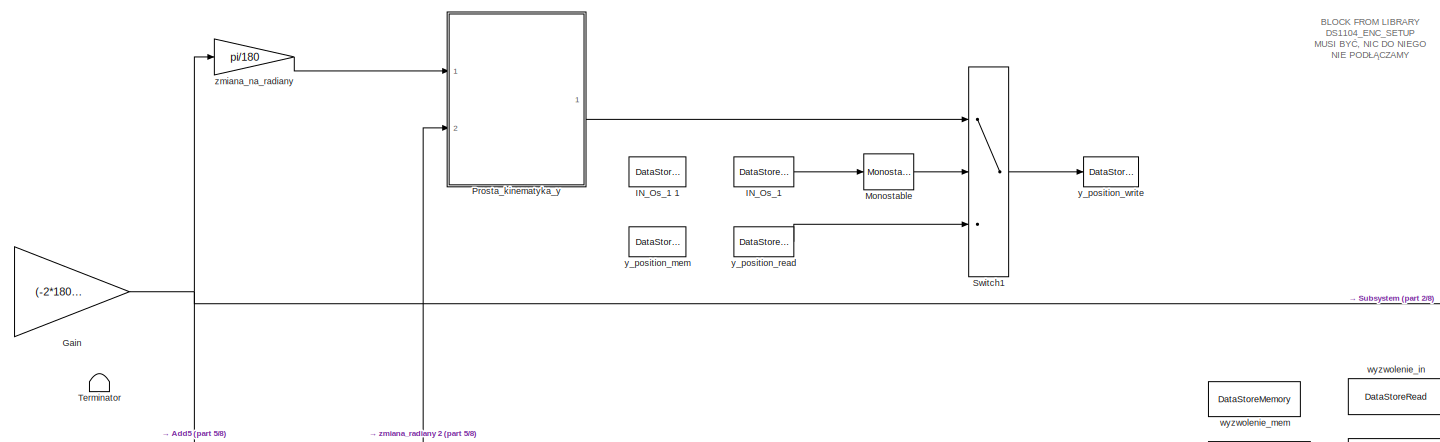
[diagram: root canvas - part 1/8, top center region]
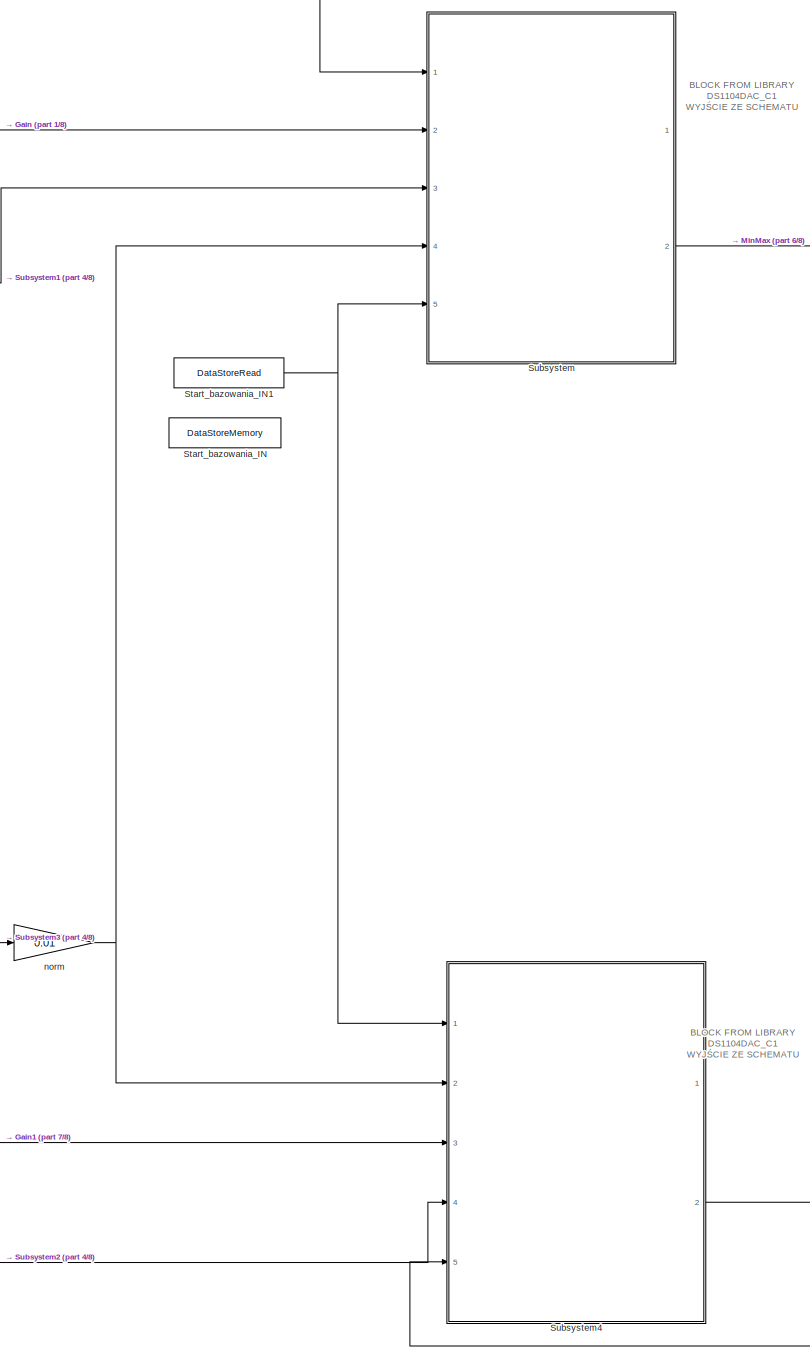
[diagram: root canvas - part 2/8, middle right region]
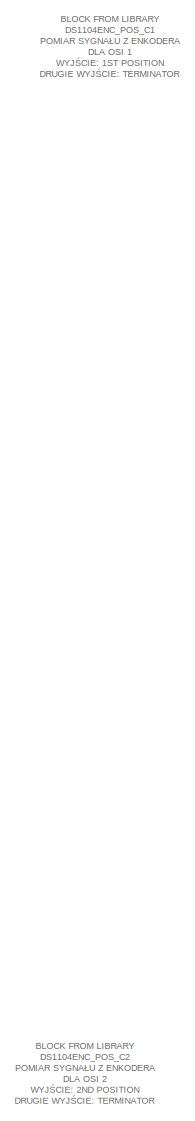
[diagram: root canvas - part 3/8, middle left region]
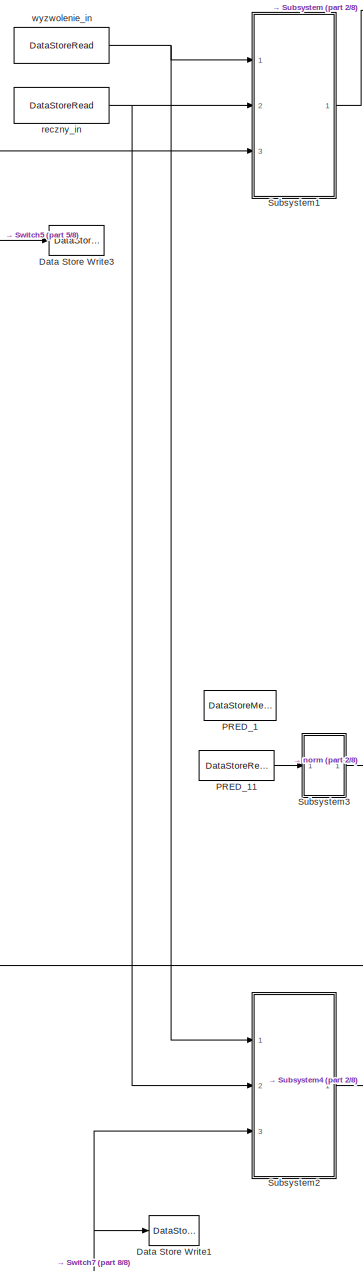
[diagram: root canvas - part 4/8, central region]
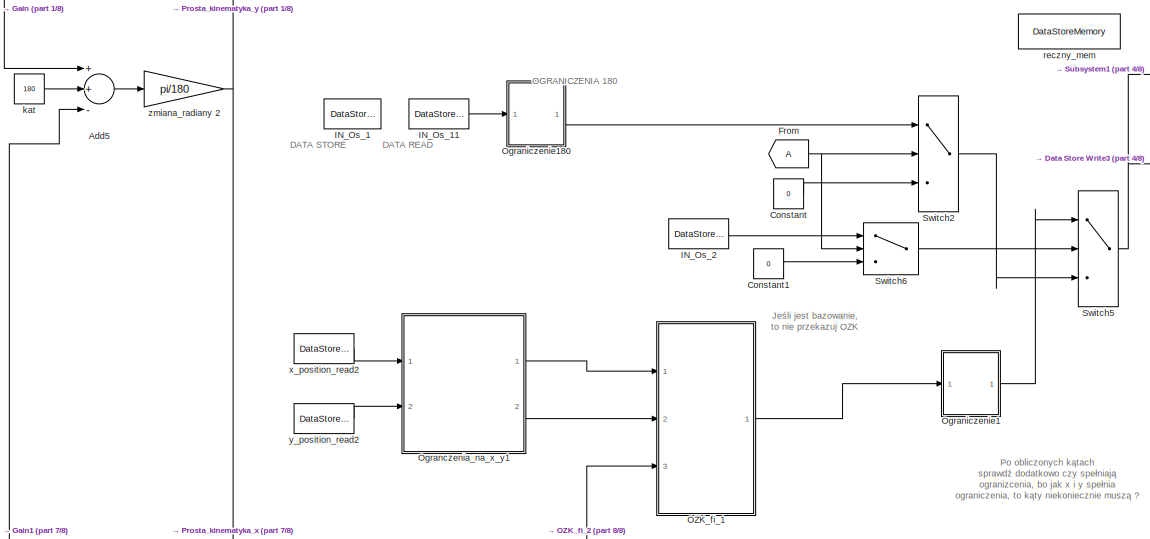
[diagram: root canvas - part 5/8, central region]
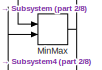
[diagram: root canvas - part 6/8, middle right region]
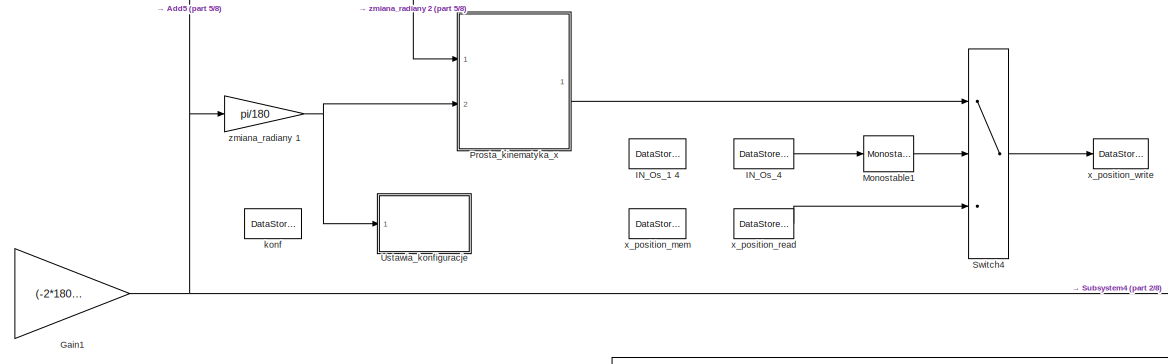
[diagram: root canvas - part 7/8, middle left region]
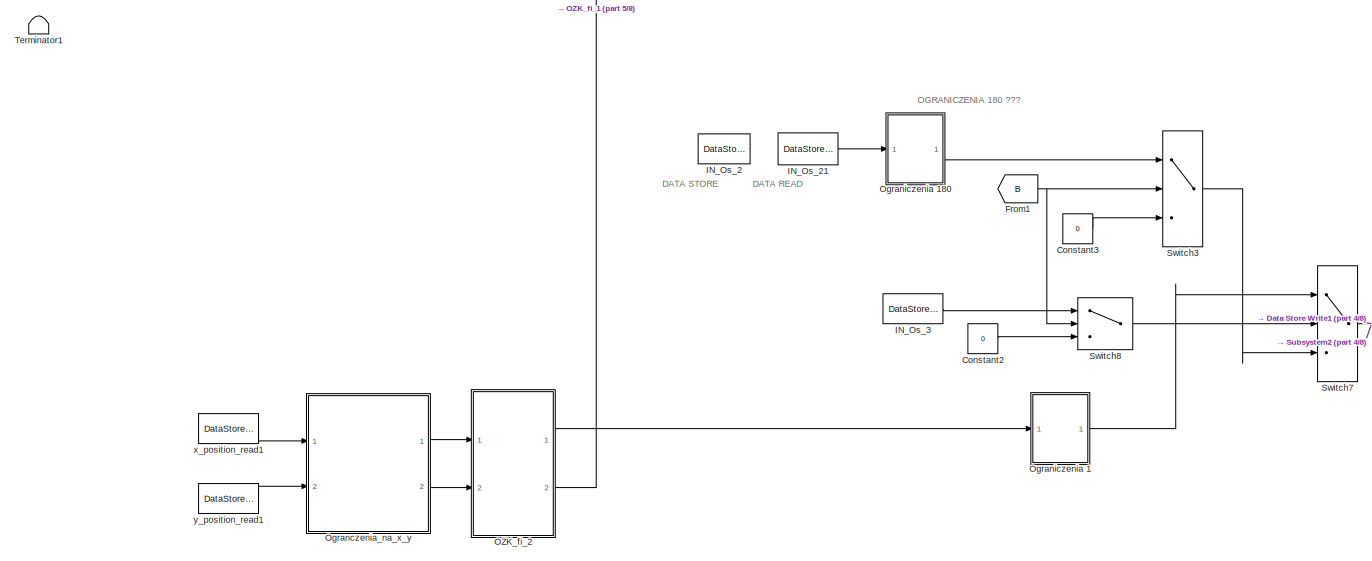
[diagram: root canvas - part 8/8, bottom center region]
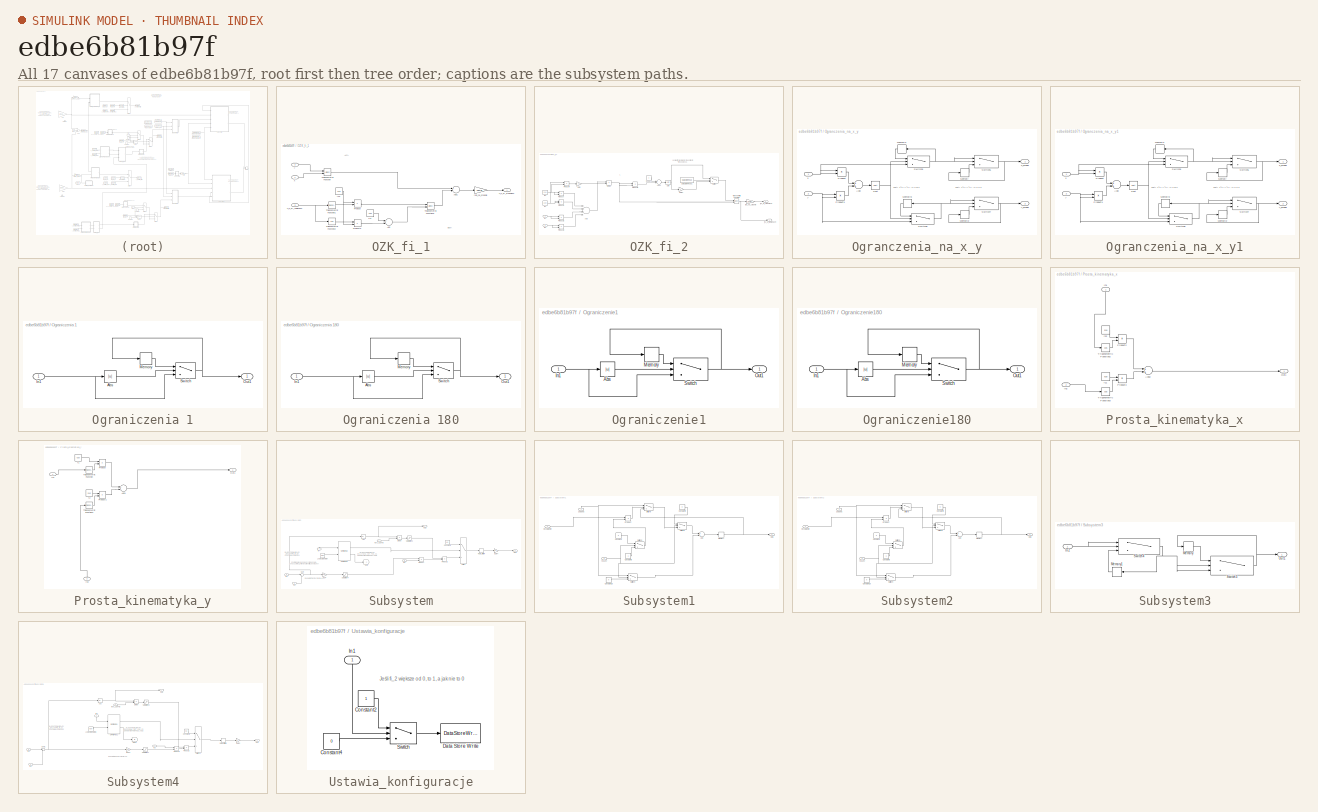
[diagram: thumbnail index - all 17 canvases of the model, root first then tree order]
MODEL slx_edbe6b81b97f
KIND model
CONFIG AbsTol = auto
CONFIG FixedStep = auto
CONFIG MaxStep = auto
CONFIG MinStep = auto
CONFIG RelTol = 1e-3
CONFIG SampleTimeConstraint = Unconstrained
CONFIG Solver = VariableStepAuto
CONFIG SolverMode = Auto
CONFIG SolverName = VariableStepAuto
CONFIG StartTime = 0.0
CONFIG StopTime = 10.0
BLOCK [Sum] Add5
  InputSameDT = off
  Inputs = ++-
  OutDataTypeStr = Inherit: Inherit via internal rule
  Ports = [3, 1]
  SaturateOnIntegerOverflow = off
BLOCK [Constant] Constant
  Value = 0
BLOCK [Constant] Constant1
  Value = 0
BLOCK [Constant] Constant2
  Value = 0
BLOCK [Constant] Constant3
  Value = 0
BLOCK [DataStoreWrite] Data Store Write1
  DataStoreName = IN_Os_2
  Ports = [1]
BLOCK [DataStoreWrite] Data Store Write3
  DataStoreName = IN_Os_1
  Ports = [1]
BLOCK [From] From
BLOCK [From] From1
  GotoTag = B
BLOCK [Gain] Gain
  Gain = (-2*180)/(500*128)
  OutDataTypeStr = Inherit: Inherit via internal rule
  ParamDataTypeStr = Inherit: Inherit via internal rule
  SaturateOnIntegerOverflow = off
BLOCK [Gain] Gain1
  Gain = (-2*180)/(500*128)
  OutDataTypeStr = Inherit: Inherit via internal rule
  ParamDataTypeStr = Inherit: Inherit via internal rule
  SaturateOnIntegerOverflow = off
BLOCK [DataStoreRead] IN_Os_1
  DataStoreName = OZK
  Ports = [0, 1]
BLOCK [DataStoreMemory] IN_Os_1 
  DataStoreName = IN_Os_1
  ReadBeforeWriteMsg = warning
  ShowAdditionalParam = off
  WriteAfterReadMsg = warning
  WriteAfterWriteMsg = warning
BLOCK [DataStoreMemory] IN_Os_1 1
  DataStoreName = OZK
  ReadBeforeWriteMsg = warning
  ShowAdditionalParam = off
  WriteAfterReadMsg = warning
  WriteAfterWriteMsg = warning
BLOCK [DataStoreMemory] IN_Os_1 4
  DataStoreName = OZK
  ReadBeforeWriteMsg = warning
  ShowAdditionalParam = off
  WriteAfterReadMsg = warning
  WriteAfterWriteMsg = warning
BLOCK [DataStoreRead] IN_Os_11
  DataStoreName = IN_Os_1
  Ports = [0, 1]
BLOCK [DataStoreRead] IN_Os_2
  DataStoreName = OZK
  Ports = [0, 1]
BLOCK [DataStoreMemory] IN_Os_2 
  DataStoreName = IN_Os_2
  ReadBeforeWriteMsg = warning
  ShowAdditionalParam = off
  WriteAfterReadMsg = warning
  WriteAfterWriteMsg = warning
BLOCK [DataStoreRead] IN_Os_21
  DataStoreName = IN_Os_2
  Ports = [0, 1]
BLOCK [DataStoreRead] IN_Os_3
  DataStoreName = OZK
  Ports = [0, 1]
BLOCK [DataStoreRead] IN_Os_4
  DataStoreName = OZK
  Ports = [0, 1]
BLOCK [MinMax] MinMax
  Function = max
  InputSameDT = off
  Inputs = 2
  Ports = [2, 1]
  SaturateOnIntegerOverflow = off
BLOCK [Reference] Monostable  REF=powerlib_meascontrol/Logic/Monostable
  Ports = [1, 1]
  SourceBlock = powerlib_meascontrol/Logic/Monostable
  SourceType = Monostable
BLOCK [Reference] Monostable1  REF=powerlib_meascontrol/Logic/Monostable
  Ports = [1, 1]
  SourceBlock = powerlib_meascontrol/Logic/Monostable
  SourceType = Monostable
BLOCK [SubSystem] OZK_fi_1
  Ports = [3, 1]
  RequestExecContextInheritance = off
  Variant = off
BLOCK [Sum] OZK_fi_1/Add
  InputSameDT = off
  Inputs = +-
  OutDataTypeStr = Inherit: Inherit via internal rule
  Ports = [2, 1]
  SaturateOnIntegerOverflow = off
BLOCK [Sum] OZK_fi_1/Add1
  InputSameDT = off
  Inputs = +-
  OutDataTypeStr = Inherit: Inherit via internal rule
  Ports = [2, 1]
  SaturateOnIntegerOverflow = off
BLOCK [Product] OZK_fi_1/Product
  InputSameDT = off
  OutDataTypeStr = Inherit: Inherit via internal rule
  Ports = [2, 1]
  RndMeth = Floor
  SaturateOnIntegerOverflow = off
BLOCK [Product] OZK_fi_1/Product5
  InputSameDT = off
  OutDataTypeStr = Inherit: Inherit via internal rule
  Ports = [2, 1]
  RndMeth = Floor
  SaturateOnIntegerOverflow = off
BLOCK [Trigonometry] OZK_fi_1/Trigonometric Function
  Operator = atan2
  Ports = [2, 1]
BLOCK [Trigonometry] OZK_fi_1/Trigonometric Function1
  Ports = [1, 1]
BLOCK [Trigonometry] OZK_fi_1/Trigonometric Function2
  Operator = cos
  Ports = [1, 1]
BLOCK [Trigonometry] OZK_fi_1/Trigonometric Function3
  Operator = atan2
  Ports = [2, 1]
BLOCK [Outport] OZK_fi_1/fi_1_w_stopniach
  IconDisplay = Port number
BLOCK [Inport] OZK_fi_1/fi_2_w_radianach
  IconDisplay = Port number
  Port = 3
BLOCK [Constant] OZK_fi_1/r11
  Value = 630
BLOCK [Constant] OZK_fi_1/r22
  Value = 510
BLOCK [Gain] OZK_fi_1/rad_na_stopnie
  Gain = 180/pi
  OutDataTypeStr = Inherit: Inherit via internal rule
  ParamDataTypeStr = Inherit: Inherit via internal rule
  SaturateOnIntegerOverflow = off
BLOCK [Inport] OZK_fi_1/x
  IconDisplay = Port number
BLOCK [Inport] OZK_fi_1/y
  IconDisplay = Port number
  Port = 2
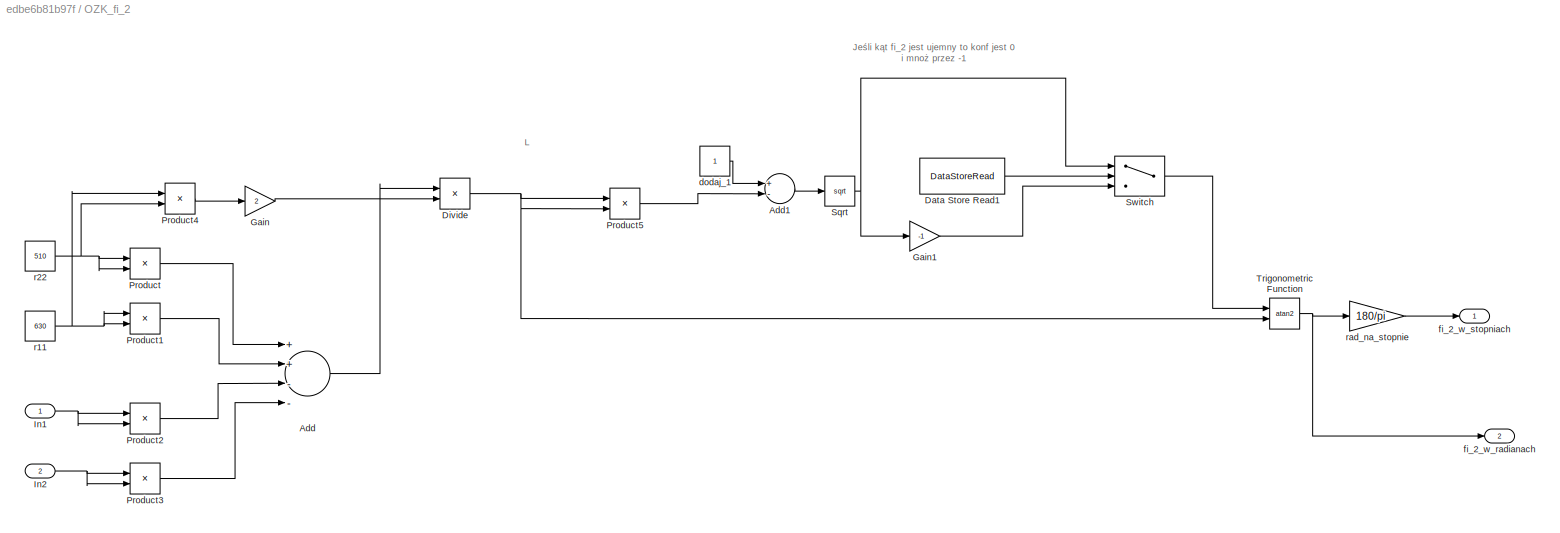
BLOCK [SubSystem] OZK_fi_2
  Ports = [2, 2]
  RequestExecContextInheritance = off
  Variant = off
BLOCK [Sum] OZK_fi_2/Add
  InputSameDT = off
  Inputs = ++--
  OutDataTypeStr = Inherit: Inherit via internal rule
  Ports = [4, 1]
  SaturateOnIntegerOverflow = off
BLOCK [Sum] OZK_fi_2/Add1
  InputSameDT = off
  Inputs = +-
  OutDataTypeStr = Inherit: Inherit via internal rule
  Ports = [2, 1]
  SaturateOnIntegerOverflow = off
BLOCK [DataStoreRead] OZK_fi_2/Data Store Read1
  DataStoreName = konf
  Ports = [0, 1]
BLOCK [Product] OZK_fi_2/Divide
  InputSameDT = off
  Inputs = */
  OutDataTypeStr = Inherit: Inherit via internal rule
  Ports = [2, 1]
  RndMeth = Floor
  SaturateOnIntegerOverflow = off
BLOCK [Gain] OZK_fi_2/Gain
  Gain = 2
  OutDataTypeStr = Inherit: Inherit via internal rule
  ParamDataTypeStr = Inherit: Inherit via internal rule
  SaturateOnIntegerOverflow = off
BLOCK [Gain] OZK_fi_2/Gain1
  Gain = -1
  OutDataTypeStr = Inherit: Inherit via internal rule
  ParamDataTypeStr = Inherit: Inherit via internal rule
  SaturateOnIntegerOverflow = off
BLOCK [Inport] OZK_fi_2/In1
  IconDisplay = Port number
BLOCK [Inport] OZK_fi_2/In2
  IconDisplay = Port number
  Port = 2
BLOCK [Product] OZK_fi_2/Product
  InputSameDT = off
  OutDataTypeStr = Inherit: Inherit via internal rule
  Ports = [2, 1]
  RndMeth = Floor
  SaturateOnIntegerOverflow = off
BLOCK [Product] OZK_fi_2/Product1
  InputSameDT = off
  OutDataTypeStr = Inherit: Inherit via internal rule
  Ports = [2, 1]
  RndMeth = Floor
  SaturateOnIntegerOverflow = off
BLOCK [Product] OZK_fi_2/Product2
  InputSameDT = off
  OutDataTypeStr = Inherit: Inherit via internal rule
  Ports = [2, 1]
  RndMeth = Floor
  SaturateOnIntegerOverflow = off
BLOCK [Product] OZK_fi_2/Product3
  InputSameDT = off
  OutDataTypeStr = Inherit: Inherit via internal rule
  Ports = [2, 1]
  RndMeth = Floor
  SaturateOnIntegerOverflow = off
BLOCK [Product] OZK_fi_2/Product4
  InputSameDT = off
  OutDataTypeStr = Inherit: Inherit via internal rule
  Ports = [2, 1]
  RndMeth = Floor
  SaturateOnIntegerOverflow = off
BLOCK [Product] OZK_fi_2/Product5
  InputSameDT = off
  OutDataTypeStr = Inherit: Inherit via internal rule
  Ports = [2, 1]
  RndMeth = Floor
  SaturateOnIntegerOverflow = off
BLOCK [Sqrt] OZK_fi_2/Sqrt
BLOCK [Switch] OZK_fi_2/Switch
  Criteria = u2 > Threshold
  InputSameDT = off
  SaturateOnIntegerOverflow = off
BLOCK [Trigonometry] OZK_fi_2/Trigonometric Function
  Operator = atan2
  Ports = [2, 1]
BLOCK [Constant] OZK_fi_2/dodaj_1
BLOCK [Outport] OZK_fi_2/fi_2_w_radianach
  IconDisplay = Port number
  Port = 2
BLOCK [Outport] OZK_fi_2/fi_2_w_stopniach
  IconDisplay = Port number
BLOCK [Constant] OZK_fi_2/r11
  Value = 630
BLOCK [Constant] OZK_fi_2/r22
  Value = 510
BLOCK [Gain] OZK_fi_2/rad_na_stopnie
  Gain = 180/pi
  OutDataTypeStr = Inherit: Inherit via internal rule
  ParamDataTypeStr = Inherit: Inherit via internal rule
  SaturateOnIntegerOverflow = off
BLOCK [SubSystem] Ogranczenia_na_x_y
  Ports = [2, 2]
  RequestExecContextInheritance = off
  Variant = off
BLOCK [Sum] Ogranczenia_na_x_y/Add
  InputSameDT = off
  OutDataTypeStr = Inherit: Inherit via internal rule
  Ports = [2, 1]
  SaturateOnIntegerOverflow = off
BLOCK [Memory] Ogranczenia_na_x_y/Memory
BLOCK [Memory] Ogranczenia_na_x_y/Memory1
BLOCK [Memory] Ogranczenia_na_x_y/Memory2
BLOCK [Memory] Ogranczenia_na_x_y/Memory3
BLOCK [Product] Ogranczenia_na_x_y/Product
  InputSameDT = off
  OutDataTypeStr = Inherit: Inherit via internal rule
  Ports = [2, 1]
  RndMeth = Floor
  SaturateOnIntegerOverflow = off
BLOCK [Product] Ogranczenia_na_x_y/Product1
  InputSameDT = off
  OutDataTypeStr = Inherit: Inherit via internal rule
  Ports = [2, 1]
  RndMeth = Floor
  SaturateOnIntegerOverflow = off
BLOCK [Sqrt] Ogranczenia_na_x_y/Sqrt
BLOCK [Switch] Ogranczenia_na_x_y/Switch5
  InputSameDT = off
  SaturateOnIntegerOverflow = off
  Threshold = 120
BLOCK [Switch] Ogranczenia_na_x_y/Switch6
  InputSameDT = off
  SaturateOnIntegerOverflow = off
  Threshold = 1140
BLOCK [Switch] Ogranczenia_na_x_y/Switch7
  InputSameDT = off
  SaturateOnIntegerOverflow = off
  Threshold = 120
BLOCK [Switch] Ogranczenia_na_x_y/Switch8
  InputSameDT = off
  SaturateOnIntegerOverflow = off
  Threshold = 1140
BLOCK [Inport] Ogranczenia_na_x_y/x
  IconDisplay = Port number
BLOCK [Outport] Ogranczenia_na_x_y/x_proper
  IconDisplay = Port number
BLOCK [Inport] Ogranczenia_na_x_y/y
  IconDisplay = Port number
  Port = 2
BLOCK [Outport] Ogranczenia_na_x_y/y_proper
  IconDisplay = Port number
  Port = 2
BLOCK [SubSystem] Ogranczenia_na_x_y1
  Ports = [2, 2]
  RequestExecContextInheritance = off
  Variant = off
BLOCK [Sum] Ogranczenia_na_x_y1/Add
  InputSameDT = off
  OutDataTypeStr = Inherit: Inherit via internal rule
  Ports = [2, 1]
  SaturateOnIntegerOverflow = off
BLOCK [Memory] Ogranczenia_na_x_y1/Memory
BLOCK [Memory] Ogranczenia_na_x_y1/Memory1
BLOCK [Memory] Ogranczenia_na_x_y1/Memory2
BLOCK [Memory] Ogranczenia_na_x_y1/Memory3
BLOCK [Product] Ogranczenia_na_x_y1/Product
  InputSameDT = off
  OutDataTypeStr = Inherit: Inherit via internal rule
  Ports = [2, 1]
  RndMeth = Floor
  SaturateOnIntegerOverflow = off
BLOCK [Product] Ogranczenia_na_x_y1/Product1
  InputSameDT = off
  OutDataTypeStr = Inherit: Inherit via internal rule
  Ports = [2, 1]
  RndMeth = Floor
  SaturateOnIntegerOverflow = off
BLOCK [Sqrt] Ogranczenia_na_x_y1/Sqrt
BLOCK [Switch] Ogranczenia_na_x_y1/Switch5
  InputSameDT = off
  SaturateOnIntegerOverflow = off
  Threshold = 120
BLOCK [Switch] Ogranczenia_na_x_y1/Switch6
  InputSameDT = off
  SaturateOnIntegerOverflow = off
  Threshold = 1140
BLOCK [Switch] Ogranczenia_na_x_y1/Switch7
  InputSameDT = off
  SaturateOnIntegerOverflow = off
  Threshold = 120
BLOCK [Switch] Ogranczenia_na_x_y1/Switch8
  InputSameDT = off
  SaturateOnIntegerOverflow = off
  Threshold = 1140
BLOCK [Inport] Ogranczenia_na_x_y1/x
  IconDisplay = Port number
BLOCK [Outport] Ogranczenia_na_x_y1/x_proper
  IconDisplay = Port number
BLOCK [Inport] Ogranczenia_na_x_y1/y
  IconDisplay = Port number
  Port = 2
BLOCK [Outport] Ogranczenia_na_x_y1/y_proper
  IconDisplay = Port number
  Port = 2
BLOCK [SubSystem] Ograniczenia 1
  Ports = [1, 1]
  RequestExecContextInheritance = off
  Variant = off
BLOCK [Abs] Ograniczenia 1/Abs
  SaturateOnIntegerOverflow = off
BLOCK [Inport] Ograniczenia 1/In1
  IconDisplay = Port number
BLOCK [Memory] Ograniczenia 1/Memory
BLOCK [Outport] Ograniczenia 1/Out1
  IconDisplay = Port number
BLOCK [Switch] Ograniczenia 1/Switch
  Criteria = u2 > Threshold
  InputSameDT = off
  SaturateOnIntegerOverflow = off
  Threshold = 40
BLOCK [SubSystem] Ograniczenia 180
  Ports = [1, 1]
  RequestExecContextInheritance = off
  Variant = off
BLOCK [Abs] Ograniczenia 180/Abs
  SaturateOnIntegerOverflow = off
BLOCK [Inport] Ograniczenia 180/In1
  IconDisplay = Port number
BLOCK [Memory] Ograniczenia 180/Memory
BLOCK [Outport] Ograniczenia 180/Out1
  IconDisplay = Port number
BLOCK [Switch] Ograniczenia 180/Switch
  Criteria = u2 > Threshold
  InputSameDT = off
  SaturateOnIntegerOverflow = off
  Threshold = 40
BLOCK [SubSystem] Ograniczenie1
  Ports = [1, 1]
  RequestExecContextInheritance = off
  Variant = off
BLOCK [Abs] Ograniczenie1/Abs
  SaturateOnIntegerOverflow = off
BLOCK [Inport] Ograniczenie1/In1
  IconDisplay = Port number
BLOCK [Memory] Ograniczenie1/Memory
BLOCK [Outport] Ograniczenie1/Out1
  IconDisplay = Port number
BLOCK [Switch] Ograniczenie1/Switch
  Criteria = u2 > Threshold
  InputSameDT = off
  SaturateOnIntegerOverflow = off
  Threshold = 180
BLOCK [SubSystem] Ograniczenie180
  Ports = [1, 1]
  RequestExecContextInheritance = off
  Variant = off
BLOCK [Abs] Ograniczenie180/Abs
  SaturateOnIntegerOverflow = off
BLOCK [Inport] Ograniczenie180/In1
  IconDisplay = Port number
BLOCK [Memory] Ograniczenie180/Memory
BLOCK [Outport] Ograniczenie180/Out1
  IconDisplay = Port number
BLOCK [Switch] Ograniczenie180/Switch
  Criteria = u2 > Threshold
  InputSameDT = off
  SaturateOnIntegerOverflow = off
  Threshold = 180
BLOCK [DataStoreMemory] PRED_1 
  DataStoreName = PRED_1
  InitialValue = 50
  ReadBeforeWriteMsg = warning
  ShowAdditionalParam = off
  WriteAfterReadMsg = warning
  WriteAfterWriteMsg = warning
BLOCK [DataStoreRead] PRED_11 
  DataStoreName = PRED_1
  Ports = [0, 1]
BLOCK [SubSystem] Prosta_kinematyka_x
  Ports = [2, 1]
  RequestExecContextInheritance = off
  Variant = off
BLOCK [Sum] Prosta_kinematyka_x/Add2
  InputSameDT = off
  OutDataTypeStr = Inherit: Inherit via internal rule
  Ports = [2, 1]
  SaturateOnIntegerOverflow = off
BLOCK [Inport] Prosta_kinematyka_x/In1
  IconDisplay = Port number
BLOCK [Inport] Prosta_kinematyka_x/In2
  IconDisplay = Port number
  Port = 2
BLOCK [Outport] Prosta_kinematyka_x/Out1
  IconDisplay = Port number
BLOCK [Product] Prosta_kinematyka_x/Product2
  InputSameDT = off
  OutDataTypeStr = Inherit: Inherit via internal rule
  Ports = [2, 1]
  RndMeth = Floor
  SaturateOnIntegerOverflow = off
BLOCK [Product] Prosta_kinematyka_x/Product3
  InputSameDT = off
  OutDataTypeStr = Inherit: Inherit via internal rule
  Ports = [2, 1]
  RndMeth = Floor
  SaturateOnIntegerOverflow = off
BLOCK [Trigonometry] Prosta_kinematyka_x/Trigonometric Function2
  Operator = cos
  Ports = [1, 1]
BLOCK [Trigonometry] Prosta_kinematyka_x/Trigonometric Function3
  Operator = cos
  Ports = [1, 1]
BLOCK [Constant] Prosta_kinematyka_x/r11
  Value = 630
BLOCK [Constant] Prosta_kinematyka_x/r22
  Value = 510
BLOCK [SubSystem] Prosta_kinematyka_y
  Ports = [2, 1]
  RequestExecContextInheritance = off
  Variant = off
BLOCK [Sum] Prosta_kinematyka_y/Add1
  InputSameDT = off
  OutDataTypeStr = Inherit: Inherit via internal rule
  Ports = [2, 1]
  SaturateOnIntegerOverflow = off
BLOCK [Inport] Prosta_kinematyka_y/In1
  IconDisplay = Port number
BLOCK [Inport] Prosta_kinematyka_y/In2
  IconDisplay = Port number
  Port = 2
BLOCK [Outport] Prosta_kinematyka_y/Out1
  IconDisplay = Port number
BLOCK [Product] Prosta_kinematyka_y/Product
  InputSameDT = off
  OutDataTypeStr = Inherit: Inherit via internal rule
  Ports = [2, 1]
  RndMeth = Floor
  SaturateOnIntegerOverflow = off
BLOCK [Product] Prosta_kinematyka_y/Product1
  InputSameDT = off
  OutDataTypeStr = Inherit: Inherit via internal rule
  Ports = [2, 1]
  RndMeth = Floor
  SaturateOnIntegerOverflow = off
BLOCK [Trigonometry] Prosta_kinematyka_y/Trigonometric Function
  Ports = [1, 1]
BLOCK [Trigonometry] Prosta_kinematyka_y/Trigonometric Function1
  Ports = [1, 1]
BLOCK [Constant] Prosta_kinematyka_y/r1
  Value = 630
BLOCK [Constant] Prosta_kinematyka_y/r2
  Value = 510
BLOCK [DataStoreMemory] Start_bazowania_IN 
  DataStoreName = Start_bazowania_IN
  ReadBeforeWriteMsg = warning
  ShowAdditionalParam = off
  WriteAfterReadMsg = warning
  WriteAfterWriteMsg = warning
BLOCK [DataStoreRead] Start_bazowania_IN1
  DataStoreName = Start_bazowania_IN
  Ports = [0, 1]
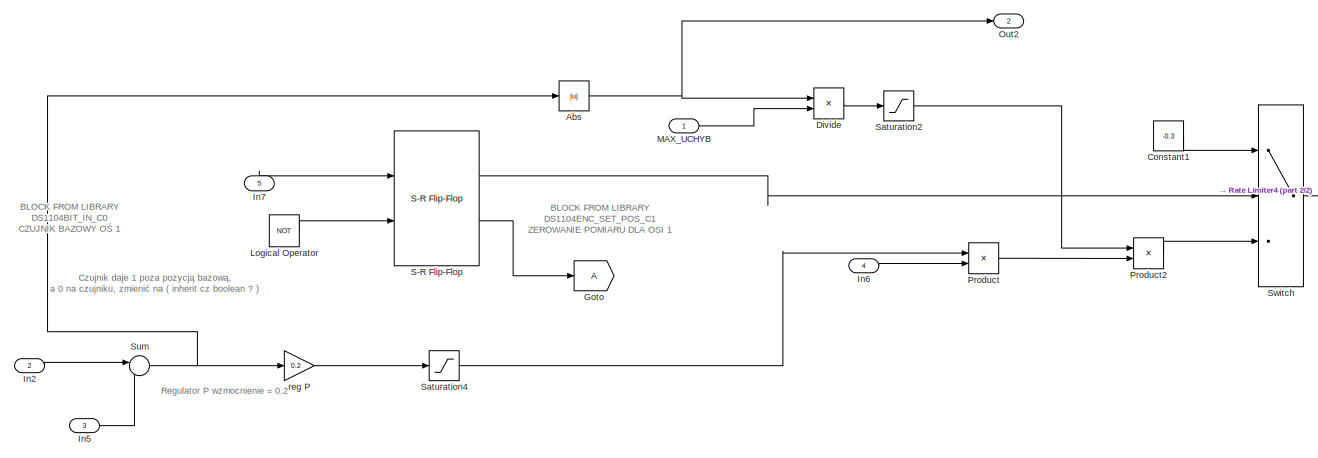
[diagram: Subsystem - part 1/2, most of the canvas]
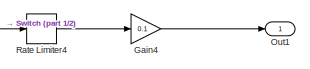
[diagram: Subsystem - part 2/2, middle right region]
BLOCK [SubSystem] Subsystem
  Ports = [5, 2]
  RequestExecContextInheritance = off
  Variant = off
BLOCK [Abs] Subsystem/Abs
  SaturateOnIntegerOverflow = off
BLOCK [Constant] Subsystem/Constant1
  Value = -0.3
BLOCK [Product] Subsystem/Divide
  InputSameDT = off
  Inputs = */
  OutDataTypeStr = Inherit: Inherit via internal rule
  Ports = [2, 1]
  RndMeth = Floor
  SaturateOnIntegerOverflow = off
BLOCK [Gain] Subsystem/Gain4
  Gain = 0.1
  OutDataTypeStr = Inherit: Inherit via internal rule
  ParamDataTypeStr = Inherit: Inherit via internal rule
  SaturateOnIntegerOverflow = off
BLOCK [Goto] Subsystem/Goto
BLOCK [Inport] Subsystem/In2
  IconDisplay = Port number
  Port = 2
BLOCK [Inport] Subsystem/In5
  IconDisplay = Port number
  Port = 3
BLOCK [Inport] Subsystem/In6
  IconDisplay = Port number
  Port = 4
BLOCK [Inport] Subsystem/In7
  IconDisplay = Port number
  Port = 5
BLOCK [Logic] Subsystem/Logical Operator
  AllPortsSameDT = off
  Operator = NOT
  Ports = [1, 1]
BLOCK [Inport] Subsystem/MAX_UCHYB 
  IconDisplay = Port number
BLOCK [Outport] Subsystem/Out1
  IconDisplay = Port number
BLOCK [Outport] Subsystem/Out2
  IconDisplay = Port number
  Port = 2
BLOCK [Product] Subsystem/Product
  InputSameDT = off
  OutDataTypeStr = Inherit: Inherit via internal rule
  Ports = [2, 1]
  RndMeth = Floor
  SaturateOnIntegerOverflow = off
BLOCK [Product] Subsystem/Product2
  InputSameDT = off
  OutDataTypeStr = Inherit: Inherit via internal rule
  Ports = [2, 1]
  RndMeth = Floor
  SaturateOnIntegerOverflow = off
BLOCK [RateLimiter] Subsystem/Rate Limiter4
  FallingSlewLimit = -50
  RisingSlewLimit = 50
  SampleTimeMode = inherited
BLOCK [Reference] Subsystem/S-R Flip-Flop  REF=simulink_extras/Flip Flops/S-R
Flip-Flop
  Ports = [2, 2]
  SourceBlock = simulink_extras/Flip Flops/S-R\nFlip-Flop
  SourceType = SRFlipFlop
BLOCK [Saturate] Subsystem/Saturation2
  InputPortMap = u0
  LowerLimit = 0.001
  Ports = [1, 1]
  UpperLimit = 1
BLOCK [Saturate] Subsystem/Saturation4
  InputPortMap = u0
  LowerLimit = -3
  Ports = [1, 1]
  UpperLimit = 3
BLOCK [Sum] Subsystem/Sum
  IconShape = round
  InputSameDT = off
  Inputs = |-+
  OutDataTypeStr = Inherit: Inherit via internal rule
  Ports = [2, 1]
  SaturateOnIntegerOverflow = off
BLOCK [Switch] Subsystem/Switch
  Criteria = u2 > Threshold
  InputSameDT = off
  SaturateOnIntegerOverflow = off
BLOCK [Gain] Subsystem/reg P
  Gain = 0.2
  OutDataTypeStr = Inherit: Inherit via internal rule
  ParamDataTypeStr = Inherit: Inherit via internal rule
  SaturateOnIntegerOverflow = off
BLOCK [SubSystem] Subsystem1
  Ports = [3, 1]
  RequestExecContextInheritance = off
  Variant = off
BLOCK [Sum] Subsystem1/Add
  InputSameDT = off
  OutDataTypeStr = Inherit: Inherit via internal rule
  Ports = [2, 1]
  SaturateOnIntegerOverflow = off
BLOCK [Constant] Subsystem1/Constant10
  Value = 0
BLOCK [Constant] Subsystem1/Constant7
  Value = 0
BLOCK [Constant] Subsystem1/Constant8
BLOCK [Constant] Subsystem1/Constant9
  Value = 0
BLOCK [Memory] Subsystem1/Memory
BLOCK [Outport] Subsystem1/Out1
  IconDisplay = Port number
BLOCK [Product] Subsystem1/Product
  InputSameDT = off
  OutDataTypeStr = Inherit: Inherit via internal rule
  Ports = [2, 1]
  RndMeth = Floor
  SaturateOnIntegerOverflow = off
BLOCK [Switch] Subsystem1/Switch3
  Criteria = u2 > Threshold
  InputSameDT = off
  SaturateOnIntegerOverflow = off
BLOCK [Switch] Subsystem1/Switch4
  Criteria = u2 > Threshold
  InputSameDT = off
  SaturateOnIntegerOverflow = off
BLOCK [Switch] Subsystem1/Switch5
  Criteria = u2 > Threshold
  InputSameDT = off
  SaturateOnIntegerOverflow = off
BLOCK [Switch] Subsystem1/Switch6
  Criteria = u2 > Threshold
  InputSameDT = off
  SaturateOnIntegerOverflow = off
BLOCK [Inport] Subsystem1/reczny 
  IconDisplay = Port number
  Port = 2
BLOCK [Inport] Subsystem1/wyzwolenie
  IconDisplay = Port number
BLOCK [Inport] Subsystem1/zadana 
  IconDisplay = Port number
  Port = 3
BLOCK [SubSystem] Subsystem2
  Ports = [3, 1]
  RequestExecContextInheritance = off
  Variant = off
BLOCK [Sum] Subsystem2/Add
  InputSameDT = off
  OutDataTypeStr = Inherit: Inherit via internal rule
  Ports = [2, 1]
  SaturateOnIntegerOverflow = off
BLOCK [Constant] Subsystem2/Constant10
  Value = 0
BLOCK [Constant] Subsystem2/Constant7
  Value = 0
BLOCK [Constant] Subsystem2/Constant8
BLOCK [Constant] Subsystem2/Constant9
  Value = 0
BLOCK [Memory] Subsystem2/Memory
BLOCK [Outport] Subsystem2/Out1
  IconDisplay = Port number
BLOCK [Product] Subsystem2/Product
  InputSameDT = off
  OutDataTypeStr = Inherit: Inherit via internal rule
  Ports = [2, 1]
  RndMeth = Floor
  SaturateOnIntegerOverflow = off
BLOCK [Switch] Subsystem2/Switch3
  Criteria = u2 > Threshold
  InputSameDT = off
  SaturateOnIntegerOverflow = off
BLOCK [Switch] Subsystem2/Switch4
  Criteria = u2 > Threshold
  InputSameDT = off
  SaturateOnIntegerOverflow = off
BLOCK [Switch] Subsystem2/Switch5
  Criteria = u2 > Threshold
  InputSameDT = off
  SaturateOnIntegerOverflow = off
BLOCK [Switch] Subsystem2/Switch6
  Criteria = u2 > Threshold
  InputSameDT = off
  SaturateOnIntegerOverflow = off
BLOCK [Inport] Subsystem2/reczny 
  IconDisplay = Port number
  Port = 2
BLOCK [Inport] Subsystem2/wyzwolenie
  IconDisplay = Port number
BLOCK [Inport] Subsystem2/zadana 
  IconDisplay = Port number
  Port = 3
BLOCK [SubSystem] Subsystem3
  Ports = [1, 1]
  RequestExecContextInheritance = off
  Variant = off
BLOCK [Inport] Subsystem3/In2
  IconDisplay = Port number
BLOCK [Memory] Subsystem3/Memory
BLOCK [Memory] Subsystem3/Memory1
BLOCK [Outport] Subsystem3/Out1
  IconDisplay = Port number
BLOCK [Switch] Subsystem3/Switch3
  InputSameDT = off
  SaturateOnIntegerOverflow = off
  Threshold = 100
BLOCK [Switch] Subsystem3/Switch4
  Criteria = u2 > Threshold
  InputSameDT = off
  SaturateOnIntegerOverflow = off
  Threshold = 1
BLOCK [SubSystem] Subsystem4
  Ports = [5, 2]
  RequestExecContextInheritance = off
  Variant = off
BLOCK [Abs] Subsystem4/Abs
  SaturateOnIntegerOverflow = off
BLOCK [Constant] Subsystem4/Constant2
  Value = -0.3
BLOCK [Product] Subsystem4/Divide
  InputSameDT = off
  Inputs = */
  OutDataTypeStr = Inherit: Inherit via internal rule
  Ports = [2, 1]
  RndMeth = Floor
  SaturateOnIntegerOverflow = off
BLOCK [Gain] Subsystem4/Gain2
  Gain = 0.1
  OutDataTypeStr = Inherit: Inherit via internal rule
  ParamDataTypeStr = Inherit: Inherit via internal rule
  SaturateOnIntegerOverflow = off
BLOCK [Goto] Subsystem4/Goto1
  GotoTag = B
BLOCK [Inport] Subsystem4/In1
  IconDisplay = Port number
BLOCK [Inport] Subsystem4/In2
  IconDisplay = Port number
  Port = 2
BLOCK [Inport] Subsystem4/In3
  IconDisplay = Port number
  Port = 3
BLOCK [Inport] Subsystem4/In5
  IconDisplay = Port number
  Port = 4
BLOCK [Logic] Subsystem4/Logical Operator1
  AllPortsSameDT = off
  Operator = NOT
  Ports = [1, 1]
BLOCK [Inport] Subsystem4/MAX_UCHYB 
  IconDisplay = Port number
  Port = 5
BLOCK [Outport] Subsystem4/Out1
  IconDisplay = Port number
  Port = 2
BLOCK [Outport] Subsystem4/Out2
  IconDisplay = Port number
BLOCK [Product] Subsystem4/Product1
  InputSameDT = off
  OutDataTypeStr = Inherit: Inherit via internal rule
  Ports = [2, 1]
  RndMeth = Floor
  SaturateOnIntegerOverflow = off
BLOCK [Product] Subsystem4/Product2
  InputSameDT = off
  OutDataTypeStr = Inherit: Inherit via internal rule
  Ports = [2, 1]
  RndMeth = Floor
  SaturateOnIntegerOverflow = off
BLOCK [RateLimiter] Subsystem4/Rate Limiter1
  FallingSlewLimit = -50
  RisingSlewLimit = 50
  SampleTimeMode = inherited
BLOCK [Reference] Subsystem4/S-R Flip-Flop1  REF=simulink_extras/Flip Flops/S-R
Flip-Flop
  Ports = [2, 2]
  SourceBlock = simulink_extras/Flip Flops/S-R\nFlip-Flop
  SourceType = SRFlipFlop
BLOCK [Saturate] Subsystem4/Saturation1
  InputPortMap = u0
  LowerLimit = -3
  Ports = [1, 1]
  UpperLimit = 3
BLOCK [Saturate] Subsystem4/Saturation2
  InputPortMap = u0
  LowerLimit = 0.001
  Ports = [1, 1]
  UpperLimit = 1
BLOCK [Sum] Subsystem4/Sum1
  IconShape = round
  InputSameDT = off
  Inputs = |-+
  OutDataTypeStr = Inherit: Inherit via internal rule
  Ports = [2, 1]
  SaturateOnIntegerOverflow = off
BLOCK [Switch] Subsystem4/Switch1
  Criteria = u2 > Threshold
  InputSameDT = off
  SaturateOnIntegerOverflow = off
BLOCK [Gain] Subsystem4/reg P1
  Gain = 0.2
  OutDataTypeStr = Inherit: Inherit via internal rule
  ParamDataTypeStr = Inherit: Inherit via internal rule
  SaturateOnIntegerOverflow = off
BLOCK [Switch] Switch1
  Criteria = u2 > Threshold
  InputSameDT = off
  SaturateOnIntegerOverflow = off
BLOCK [Switch] Switch2
  Criteria = u2 > Threshold
  InputSameDT = off
  SaturateOnIntegerOverflow = off
BLOCK [Switch] Switch3
  Criteria = u2 > Threshold
  InputSameDT = off
  SaturateOnIntegerOverflow = off
BLOCK [Switch] Switch4
  Criteria = u2 > Threshold
  InputSameDT = off
  SaturateOnIntegerOverflow = off
BLOCK [Switch] Switch5
  Criteria = u2 > Threshold
  InputSameDT = off
  SaturateOnIntegerOverflow = off
BLOCK [Switch] Switch6
  Criteria = u2 > Threshold
  InputSameDT = off
  SaturateOnIntegerOverflow = off
BLOCK [Switch] Switch7
  Criteria = u2 > Threshold
  InputSameDT = off
  SaturateOnIntegerOverflow = off
BLOCK [Switch] Switch8
  Criteria = u2 > Threshold
  InputSameDT = off
  SaturateOnIntegerOverflow = off
BLOCK [Terminator] Terminator
BLOCK [Terminator] Terminator1
BLOCK [SubSystem] Ustawia_konfiguracje
  Ports = [1]
  RequestExecContextInheritance = off
  Variant = off
BLOCK [Constant] Ustawia_konfiguracje/Constant2
BLOCK [Constant] Ustawia_konfiguracje/Constant4
  Value = 0
BLOCK [DataStoreWrite] Ustawia_konfiguracje/Data Store Write
  DataStoreName = konf
  Ports = [1]
BLOCK [Inport] Ustawia_konfiguracje/In1
  IconDisplay = Port number
BLOCK [Switch] Ustawia_konfiguracje/Switch
  Criteria = u2 > Threshold
  InputSameDT = off
  SaturateOnIntegerOverflow = off
BLOCK [Constant] kat 
  Value = 180
BLOCK [DataStoreMemory] konf
  DataStoreName = konf
  ReadBeforeWriteMsg = warning
  ShowAdditionalParam = off
  WriteAfterReadMsg = warning
  WriteAfterWriteMsg = warning
BLOCK [Gain] norm
  Gain = 0.01
  OutDataTypeStr = Inherit: Inherit via internal rule
  ParamDataTypeStr = Inherit: Inherit via internal rule
  SaturateOnIntegerOverflow = off
BLOCK [DataStoreRead] reczny_in 
  DataStoreName = reczny
  Ports = [0, 1]
BLOCK [DataStoreMemory] reczny_mem
  DataStoreName = reczny
  ReadBeforeWriteMsg = warning
  ShowAdditionalParam = off
  WriteAfterReadMsg = warning
  WriteAfterWriteMsg = warning
BLOCK [DataStoreRead] wyzwolenie_in 
  DataStoreName = wyzwolenie
  Ports = [0, 1]
BLOCK [DataStoreMemory] wyzwolenie_mem
  DataStoreName = wyzwolenie
  ReadBeforeWriteMsg = warning
  ShowAdditionalParam = off
  WriteAfterReadMsg = warning
  WriteAfterWriteMsg = warning
BLOCK [DataStoreMemory] x_position_mem
  DataStoreName = x_position
  ReadBeforeWriteMsg = warning
  ShowAdditionalParam = off
  WriteAfterReadMsg = warning
  WriteAfterWriteMsg = warning
BLOCK [DataStoreRead] x_position_read
  DataStoreName = x_position
  Ports = [0, 1]
BLOCK [DataStoreRead] x_position_read1
  DataStoreName = x_position
  Ports = [0, 1]
BLOCK [DataStoreRead] x_position_read2
  DataStoreName = x_position
  Ports = [0, 1]
BLOCK [DataStoreWrite] x_position_write
  DataStoreName = x_position
  Ports = [1]
BLOCK [DataStoreMemory] y_position_mem 
  DataStoreName = y_position
  ReadBeforeWriteMsg = warning
  ShowAdditionalParam = off
  WriteAfterReadMsg = warning
  WriteAfterWriteMsg = warning
BLOCK [DataStoreRead] y_position_read
  DataStoreName = y_position
  Ports = [0, 1]
BLOCK [DataStoreRead] y_position_read1
  DataStoreName = y_position
  Ports = [0, 1]
BLOCK [DataStoreRead] y_position_read2
  DataStoreName = y_position
  Ports = [0, 1]
BLOCK [DataStoreWrite] y_position_write
  DataStoreName = y_position
  Ports = [1]
BLOCK [Gain] zmiana_na_radiany 
  Gain = pi/180
  OutDataTypeStr = Inherit: Inherit via internal rule
  ParamDataTypeStr = Inherit: Inherit via internal rule
  SaturateOnIntegerOverflow = off
BLOCK [Gain] zmiana_radiany 1
  Gain = pi/180
  OutDataTypeStr = Inherit: Inherit via internal rule
  ParamDataTypeStr = Inherit: Inherit via internal rule
  SaturateOnIntegerOverflow = off
BLOCK [Gain] zmiana_radiany 2
  Gain = pi/180
  OutDataTypeStr = Inherit: Inherit via internal rule
  ParamDataTypeStr = Inherit: Inherit via internal rule
  SaturateOnIntegerOverflow = off
ANNOTATION (root): DATA READ
ANNOTATION (root): BLOCK FROM LIBRARY DS1104DAC_C1 WYJŚCIE ZE SCHEMATU
ANNOTATION (root): DATA STORE
ANNOTATION (root): BLOCK FROM LIBRARY DS1104ENC_POS_C1 POMIAR SYGNAŁU Z ENKODERA DLA OSI 1 WYJŚCIE: 1ST POSITION DRUGIE WYJŚCIE: TERMINATOR
ANNOTATION (root): BLOCK FROM LIBRARY DS1104ENC_POS_C2 POMIAR SYGNAŁU Z ENKODERA DLA OSI 2 WYJŚCIE: 2 ND POSITION DRUGIE WYJŚCIE: TERMINATOR
ANNOTATION (root): BLOCK FROM LIBRARY DS1104_ENC_SETUP MUSI BYĆ, NIC DO NIEGO NIE PODŁĄCZAMY
ANNOTATION (root): OGRANICZENIA 180
ANNOTATION (root): OGRANICZENIA 180 ???
ANNOTATION (root): Jeśli jest bazowanie, to nie przekazuj OZK
ANNOTATION (root): Po obliczonych kątach sprawdź dodatkowo czy spełniają ogranizcenia, bo jak x i y spełnia ograniczenia, to kąty niekoniecznie muszą ?
ANNOTATION OZK_fi_1: ALFA
ANNOTATION OZK_fi_1: BETA
ANNOTATION OZK_fi_2: Jeśli kąt fi_2 jest ujemny to konf jest 0 i mnoż przez -1
ANNOTATION OZK_fi_2: L
ANNOTATION Ogranczenia_na_x_y: sqrt( x^2 + y^2 ) <= r1+r2
ANNOTATION Ogranczenia_na_x_y: sqrt( x^2 + y^2 ) => r1-r2
ANNOTATION Ogranczenia_na_x_y1: sqrt( x^2 + y^2 ) <= r1+r2
ANNOTATION Ogranczenia_na_x_y1: sqrt( x^2 + y^2 ) => r1-r2
ANNOTATION Subsystem: Regulator P wzmocnienie = 0.2
ANNOTATION Subsystem: BLOCK FROM LIBRARY DS1104BIT_IN_C0 CZUJNIK BAZOWY OŚ 1
ANNOTATION Subsystem: BLOCK FROM LIBRARY DS1104ENC_SET_POS_C1 ZEROWANIE POMIARU DLA OSI 1
ANNOTATION Subsystem: Czujnik daje 1 poza pozycją bazową, a 0 na czujniku, zmienić na ( inherit cz boolean ? )
ANNOTATION Subsystem4: Regulator P wzmocnienie = 0.2
ANNOTATION Subsystem4: BLOCK FROM LIBRARY DS1104BIT_IN_C1 CZUJNIK BAZOWY OŚ 2
ANNOTATION Subsystem4: BLOCK FROM LIBRARY DS1104ENC_SET_POS_C2 ZEROWANIE POMIARU DLA OSI 2
ANNOTATION Ustawia_konfiguracje: Jeśli fi_2 większe od 0, to 1, a jak nie to 0
LINE Add5:1 -> zmiana_radiany 2:1
LINE Constant1:1 -> Switch6:3
LINE Constant2:1 -> Switch8:3
LINE Constant3:1 -> Switch3:3
LINE Constant:1 -> Switch2:3
NET From1:1 -> Switch3:2, Switch8:2
NET From:1 -> Switch2:2, Switch6:2
NET Gain1:1 -> Add5:3, Subsystem4:3, zmiana_radiany 1:1
NET Gain:1 -> Add5:1, Subsystem:2, zmiana_na_radiany :1
LINE IN_Os_11:1 -> Ograniczenie180:1
LINE IN_Os_1:1 -> Monostable:1
LINE IN_Os_21:1 -> Ograniczenia 180:1
LINE IN_Os_2:1 -> Switch6:1
LINE IN_Os_3:1 -> Switch8:1
LINE IN_Os_4:1 -> Monostable1:1
NET MinMax:1 -> Subsystem4:5, Subsystem:1
LINE Monostable1:1 -> Switch4:2
LINE Monostable:1 -> Switch1:2
LINE OZK_fi_1/Add1:1 -> OZK_fi_1/rad_na_stopnie:1
LINE OZK_fi_1/Add:1 -> OZK_fi_1/Trigonometric Function3:2
LINE OZK_fi_1/Product5:1 -> OZK_fi_1/Add:2
LINE OZK_fi_1/Product:1 -> OZK_fi_1/Trigonometric Function3:1
LINE OZK_fi_1/Trigonometric Function1:1 -> OZK_fi_1/Product:2
LINE OZK_fi_1/Trigonometric Function2:1 -> OZK_fi_1/Product5:1
LINE OZK_fi_1/Trigonometric Function3:1 -> OZK_fi_1/Add1:2
LINE OZK_fi_1/Trigonometric Function:1 -> OZK_fi_1/Add1:1
NET OZK_fi_1/fi_2_w_radianach:1 -> OZK_fi_1/Trigonometric Function1:1, OZK_fi_1/Trigonometric Function2:1
LINE OZK_fi_1/r11:1 -> OZK_fi_1/Add:1
NET OZK_fi_1/r22:1 -> OZK_fi_1/Product5:2, OZK_fi_1/Product:1
LINE OZK_fi_1/rad_na_stopnie:1 -> OZK_fi_1/fi_1_w_stopniach:1
LINE OZK_fi_1/x:1 -> OZK_fi_1/Trigonometric Function:2
LINE OZK_fi_1/y:1 -> OZK_fi_1/Trigonometric Function:1
LINE OZK_fi_1:1 -> Ograniczenie1:1
LINE OZK_fi_2/Add1:1 -> OZK_fi_2/Sqrt:1
LINE OZK_fi_2/Add:1 -> OZK_fi_2/Divide:1
LINE OZK_fi_2/Data Store Read1:1 -> OZK_fi_2/Switch:2
NET OZK_fi_2/Divide:1 -> OZK_fi_2/Product5:1, OZK_fi_2/Product5:2, OZK_fi_2/Trigonometric Function:2
LINE OZK_fi_2/Gain1:1 -> OZK_fi_2/Switch:3
LINE OZK_fi_2/Gain:1 -> OZK_fi_2/Divide:2
NET OZK_fi_2/In1:1 -> OZK_fi_2/Product2:1, OZK_fi_2/Product2:2
NET OZK_fi_2/In2:1 -> OZK_fi_2/Product3:1, OZK_fi_2/Product3:2
LINE OZK_fi_2/Product1:1 -> OZK_fi_2/Add:2
LINE OZK_fi_2/Product2:1 -> OZK_fi_2/Add:3
LINE OZK_fi_2/Product3:1 -> OZK_fi_2/Add:4
LINE OZK_fi_2/Product4:1 -> OZK_fi_2/Gain:1
LINE OZK_fi_2/Product5:1 -> OZK_fi_2/Add1:2
LINE OZK_fi_2/Product:1 -> OZK_fi_2/Add:1
NET OZK_fi_2/Sqrt:1 -> OZK_fi_2/Gain1:1, OZK_fi_2/Switch:1
LINE OZK_fi_2/Switch:1 -> OZK_fi_2/Trigonometric Function:1
NET OZK_fi_2/Trigonometric Function:1 -> OZK_fi_2/fi_2_w_radianach:1, OZK_fi_2/rad_na_stopnie:1
LINE OZK_fi_2/dodaj_1:1 -> OZK_fi_2/Add1:1
NET OZK_fi_2/r11:1 -> OZK_fi_2/Product1:1, OZK_fi_2/Product1:2, OZK_fi_2/Product4:1
NET OZK_fi_2/r22:1 -> OZK_fi_2/Product4:2, OZK_fi_2/Product:1, OZK_fi_2/Product:2
LINE OZK_fi_2/rad_na_stopnie:1 -> OZK_fi_2/fi_2_w_stopniach:1
LINE OZK_fi_2:1 -> Ograniczenia 1:1
LINE OZK_fi_2:2 -> OZK_fi_1:3
LINE Ogranczenia_na_x_y/Add:1 -> Ogranczenia_na_x_y/Sqrt:1
LINE Ogranczenia_na_x_y/Memory1:1 -> Ogranczenia_na_x_y/Switch6:1
LINE Ogranczenia_na_x_y/Memory2:1 -> Ogranczenia_na_x_y/Switch7:3
LINE Ogranczenia_na_x_y/Memory3:1 -> Ogranczenia_na_x_y/Switch8:1
LINE Ogranczenia_na_x_y/Memory:1 -> Ogranczenia_na_x_y/Switch5:3
LINE Ogranczenia_na_x_y/Product1:1 -> Ogranczenia_na_x_y/Add:2
LINE Ogranczenia_na_x_y/Product:1 -> Ogranczenia_na_x_y/Add:1
NET Ogranczenia_na_x_y/Sqrt:1 -> Ogranczenia_na_x_y/Switch6:2, Ogranczenia_na_x_y/Switch8:2
NET Ogranczenia_na_x_y/Switch5:1 -> Ogranczenia_na_x_y/Memory:1, Ogranczenia_na_x_y/x_proper:1
NET Ogranczenia_na_x_y/Switch6:1 -> Ogranczenia_na_x_y/Memory1:1, Ogranczenia_na_x_y/Switch5:1, Ogranczenia_na_x_y/Switch5:2
NET Ogranczenia_na_x_y/Switch7:1 -> Ogranczenia_na_x_y/Memory2:1, Ogranczenia_na_x_y/y_proper:1
NET Ogranczenia_na_x_y/Switch8:1 -> Ogranczenia_na_x_y/Memory3:1, Ogranczenia_na_x_y/Switch7:1, Ogranczenia_na_x_y/Switch7:2
NET Ogranczenia_na_x_y/x:1 -> Ogranczenia_na_x_y/Product:1, Ogranczenia_na_x_y/Product:2, Ogranczenia_na_x_y/Switch6:3
NET Ogranczenia_na_x_y/y:1 -> Ogranczenia_na_x_y/Product1:1, Ogranczenia_na_x_y/Product1:2, Ogranczenia_na_x_y/Switch8:3
LINE Ogranczenia_na_x_y1/Add:1 -> Ogranczenia_na_x_y1/Sqrt:1
LINE Ogranczenia_na_x_y1/Memory1:1 -> Ogranczenia_na_x_y1/Switch6:1
LINE Ogranczenia_na_x_y1/Memory2:1 -> Ogranczenia_na_x_y1/Switch7:3
LINE Ogranczenia_na_x_y1/Memory3:1 -> Ogranczenia_na_x_y1/Switch8:1
LINE Ogranczenia_na_x_y1/Memory:1 -> Ogranczenia_na_x_y1/Switch5:3
LINE Ogranczenia_na_x_y1/Product1:1 -> Ogranczenia_na_x_y1/Add:2
LINE Ogranczenia_na_x_y1/Product:1 -> Ogranczenia_na_x_y1/Add:1
NET Ogranczenia_na_x_y1/Sqrt:1 -> Ogranczenia_na_x_y1/Switch6:2, Ogranczenia_na_x_y1/Switch8:2
NET Ogranczenia_na_x_y1/Switch5:1 -> Ogranczenia_na_x_y1/Memory:1, Ogranczenia_na_x_y1/x_proper:1
NET Ogranczenia_na_x_y1/Switch6:1 -> Ogranczenia_na_x_y1/Memory1:1, Ogranczenia_na_x_y1/Switch5:1, Ogranczenia_na_x_y1/Switch5:2
NET Ogranczenia_na_x_y1/Switch7:1 -> Ogranczenia_na_x_y1/Memory2:1, Ogranczenia_na_x_y1/y_proper:1
NET Ogranczenia_na_x_y1/Switch8:1 -> Ogranczenia_na_x_y1/Memory3:1, Ogranczenia_na_x_y1/Switch7:1, Ogranczenia_na_x_y1/Switch7:2
NET Ogranczenia_na_x_y1/x:1 -> Ogranczenia_na_x_y1/Product:1, Ogranczenia_na_x_y1/Product:2, Ogranczenia_na_x_y1/Switch6:3
NET Ogranczenia_na_x_y1/y:1 -> Ogranczenia_na_x_y1/Product1:1, Ogranczenia_na_x_y1/Product1:2, Ogranczenia_na_x_y1/Switch8:3
LINE Ogranczenia_na_x_y1:1 -> OZK_fi_1:1
LINE Ogranczenia_na_x_y1:2 -> OZK_fi_1:2
LINE Ogranczenia_na_x_y:1 -> OZK_fi_2:1
LINE Ogranczenia_na_x_y:2 -> OZK_fi_2:2
LINE Ograniczenia 1/Abs:1 -> Ograniczenia 1/Switch:2
NET Ograniczenia 1/In1:1 -> Ograniczenia 1/Abs:1, Ograniczenia 1/Switch:3
LINE Ograniczenia 1/Memory:1 -> Ograniczenia 1/Switch:1
NET Ograniczenia 1/Switch:1 -> Ograniczenia 1/Memory:1, Ograniczenia 1/Out1:1
LINE Ograniczenia 180/Abs:1 -> Ograniczenia 180/Switch:2
NET Ograniczenia 180/In1:1 -> Ograniczenia 180/Abs:1, Ograniczenia 180/Switch:3
LINE Ograniczenia 180/Memory:1 -> Ograniczenia 180/Switch:1
NET Ograniczenia 180/Switch:1 -> Ograniczenia 180/Memory:1, Ograniczenia 180/Out1:1
LINE Ograniczenia 180:1 -> Switch3:1
LINE Ograniczenia 1:1 -> Switch7:1
LINE Ograniczenie1/Abs:1 -> Ograniczenie1/Switch:2
NET Ograniczenie1/In1:1 -> Ograniczenie1/Abs:1, Ograniczenie1/Switch:3
LINE Ograniczenie1/Memory:1 -> Ograniczenie1/Switch:1
NET Ograniczenie1/Switch:1 -> Ograniczenie1/Memory:1, Ograniczenie1/Out1:1
LINE Ograniczenie180/Abs:1 -> Ograniczenie180/Switch:2
NET Ograniczenie180/In1:1 -> Ograniczenie180/Abs:1, Ograniczenie180/Switch:3
LINE Ograniczenie180/Memory:1 -> Ograniczenie180/Switch:1
NET Ograniczenie180/Switch:1 -> Ograniczenie180/Memory:1, Ograniczenie180/Out1:1
LINE Ograniczenie180:1 -> Switch2:1
LINE Ograniczenie1:1 -> Switch5:1
LINE PRED_11 :1 -> Subsystem3:1
LINE Prosta_kinematyka_x/Add2:1 -> Prosta_kinematyka_x/Out1:1
LINE Prosta_kinematyka_x/In1:1 -> Prosta_kinematyka_x/Trigonometric Function2:1
LINE Prosta_kinematyka_x/In2:1 -> Prosta_kinematyka_x/Trigonometric Function3:1
LINE Prosta_kinematyka_x/Product2:1 -> Prosta_kinematyka_x/Add2:1
LINE Prosta_kinematyka_x/Product3:1 -> Prosta_kinematyka_x/Add2:2
LINE Prosta_kinematyka_x/Trigonometric Function2:1 -> Prosta_kinematyka_x/Product2:2
LINE Prosta_kinematyka_x/Trigonometric Function3:1 -> Prosta_kinematyka_x/Product3:2
LINE Prosta_kinematyka_x/r11:1 -> Prosta_kinematyka_x/Product3:1
LINE Prosta_kinematyka_x/r22:1 -> Prosta_kinematyka_x/Product2:1
LINE Prosta_kinematyka_x:1 -> Switch4:1
LINE Prosta_kinematyka_y/Add1:1 -> Prosta_kinematyka_y/Out1:1
LINE Prosta_kinematyka_y/In1:1 -> Prosta_kinematyka_y/Trigonometric Function:1
LINE Prosta_kinematyka_y/In2:1 -> Prosta_kinematyka_y/Trigonometric Function1:1
LINE Prosta_kinematyka_y/Product1:1 -> Prosta_kinematyka_y/Add1:2
LINE Prosta_kinematyka_y/Product:1 -> Prosta_kinematyka_y/Add1:1
LINE Prosta_kinematyka_y/Trigonometric Function1:1 -> Prosta_kinematyka_y/Product1:2
LINE Prosta_kinematyka_y/Trigonometric Function:1 -> Prosta_kinematyka_y/Product:2
LINE Prosta_kinematyka_y/r1:1 -> Prosta_kinematyka_y/Product:1
LINE Prosta_kinematyka_y/r2:1 -> Prosta_kinematyka_y/Product1:1
LINE Prosta_kinematyka_y:1 -> Switch1:1
NET Start_bazowania_IN1:1 -> Subsystem4:1, Subsystem:5
NET Subsystem/Abs:1 -> Subsystem/Divide:1, Subsystem/Out2:1
LINE Subsystem/Constant1:1 -> Subsystem/Switch:1
LINE Subsystem/Divide:1 -> Subsystem/Saturation2:1
LINE Subsystem/Gain4:1 -> Subsystem/Out1:1
LINE Subsystem/In2:1 -> Subsystem/Sum:1
LINE Subsystem/In5:1 -> Subsystem/Sum:2
LINE Subsystem/In6:1 -> Subsystem/Product:2
LINE Subsystem/In7:1 -> Subsystem/S-R Flip-Flop:1
LINE Subsystem/Logical Operator:1 -> Subsystem/S-R Flip-Flop:2
LINE Subsystem/MAX_UCHYB :1 -> Subsystem/Divide:2
LINE Subsystem/Product2:1 -> Subsystem/Switch:3
LINE Subsystem/Product:1 -> Subsystem/Product2:2
LINE Subsystem/Rate Limiter4:1 -> Subsystem/Gain4:1
LINE Subsystem/S-R Flip-Flop:1 -> Subsystem/Switch:2
LINE Subsystem/S-R Flip-Flop:2 -> Subsystem/Goto:1
LINE Subsystem/Saturation2:1 -> Subsystem/Product2:1
LINE Subsystem/Saturation4:1 -> Subsystem/Product:1
NET Subsystem/Sum:1 -> Subsystem/Abs:1, Subsystem/reg P:1
LINE Subsystem/Switch:1 -> Subsystem/Rate Limiter4:1
LINE Subsystem/reg P:1 -> Subsystem/Saturation4:1
LINE Subsystem1/Add:1 -> Subsystem1/Memory:1
LINE Subsystem1/Constant10:1 -> Subsystem1/Switch4:3
LINE Subsystem1/Constant7:1 -> Subsystem1/Switch3:1
LINE Subsystem1/Constant8:1 -> Subsystem1/Switch3:3
LINE Subsystem1/Constant9:1 -> Subsystem1/Switch6:1
NET Subsystem1/Memory:1 -> Subsystem1/Out1:1, Subsystem1/Switch5:3
LINE Subsystem1/Product:1 -> Subsystem1/Switch5:2
LINE Subsystem1/Switch3:1 -> Subsystem1/Product:2
LINE Subsystem1/Switch4:1 -> Subsystem1/Add:2
LINE Subsystem1/Switch5:1 -> Subsystem1/Switch6:3
LINE Subsystem1/Switch6:1 -> Subsystem1/Add:1
NET Subsystem1/reczny :1 -> Subsystem1/Switch3:2, Subsystem1/Switch4:2, Subsystem1/Switch6:2
LINE Subsystem1/wyzwolenie:1 -> Subsystem1/Product:1
NET Subsystem1/zadana :1 -> Subsystem1/Switch4:1, Subsystem1/Switch5:1
LINE Subsystem1:1 -> Subsystem:3
LINE Subsystem2/Add:1 -> Subsystem2/Memory:1
LINE Subsystem2/Constant10:1 -> Subsystem2/Switch4:3
LINE Subsystem2/Constant7:1 -> Subsystem2/Switch3:1
LINE Subsystem2/Constant8:1 -> Subsystem2/Switch3:3
LINE Subsystem2/Constant9:1 -> Subsystem2/Switch6:1
NET Subsystem2/Memory:1 -> Subsystem2/Out1:1, Subsystem2/Switch5:3
LINE Subsystem2/Product:1 -> Subsystem2/Switch5:2
LINE Subsystem2/Switch3:1 -> Subsystem2/Product:2
LINE Subsystem2/Switch4:1 -> Subsystem2/Add:2
LINE Subsystem2/Switch5:1 -> Subsystem2/Switch6:3
LINE Subsystem2/Switch6:1 -> Subsystem2/Add:1
NET Subsystem2/reczny :1 -> Subsystem2/Switch3:2, Subsystem2/Switch4:2, Subsystem2/Switch6:2
LINE Subsystem2/wyzwolenie:1 -> Subsystem2/Product:1
NET Subsystem2/zadana :1 -> Subsystem2/Switch4:1, Subsystem2/Switch5:1
LINE Subsystem2:1 -> Subsystem4:4
NET Subsystem3/In2:1 -> Subsystem3/Switch4:1, Subsystem3/Switch4:2
LINE Subsystem3/Memory1:1 -> Subsystem3/Switch4:3
LINE Subsystem3/Memory:1 -> Subsystem3/Switch3:1
NET Subsystem3/Switch3:1 -> Subsystem3/Memory:1, Subsystem3/Out1:1
NET Subsystem3/Switch4:1 -> Subsystem3/Memory1:1, Subsystem3/Switch3:2, Subsystem3/Switch3:3
LINE Subsystem3:1 -> norm:1
NET Subsystem4/Abs:1 -> Subsystem4/Divide:1, Subsystem4/Out1:1
LINE Subsystem4/Constant2:1 -> Subsystem4/Switch1:1
LINE Subsystem4/Divide:1 -> Subsystem4/Saturation2:1
LINE Subsystem4/Gain2:1 -> Subsystem4/Out2:1
LINE Subsystem4/In1:1 -> Subsystem4/S-R Flip-Flop1:1
LINE Subsystem4/In2:1 -> Subsystem4/Product1:1
LINE Subsystem4/In3:1 -> Subsystem4/Sum1:1
LINE Subsystem4/In5:1 -> Subsystem4/Sum1:2
LINE Subsystem4/Logical Operator1:1 -> Subsystem4/S-R Flip-Flop1:2
LINE Subsystem4/MAX_UCHYB :1 -> Subsystem4/Divide:2
LINE Subsystem4/Product1:1 -> Subsystem4/Product2:2
LINE Subsystem4/Product2:1 -> Subsystem4/Switch1:3
LINE Subsystem4/Rate Limiter1:1 -> Subsystem4/Gain2:1
LINE Subsystem4/S-R Flip-Flop1:1 -> Subsystem4/Switch1:2
LINE Subsystem4/S-R Flip-Flop1:2 -> Subsystem4/Goto1:1
LINE Subsystem4/Saturation1:1 -> Subsystem4/Product1:2
LINE Subsystem4/Saturation2:1 -> Subsystem4/Product2:1
NET Subsystem4/Sum1:1 -> Subsystem4/Abs:1, Subsystem4/reg P1:1
LINE Subsystem4/Switch1:1 -> Subsystem4/Rate Limiter1:1
LINE Subsystem4/reg P1:1 -> Subsystem4/Saturation1:1
LINE Subsystem4:2 -> MinMax:2
LINE Subsystem:2 -> MinMax:1
LINE Switch1:1 -> y_position_write:1
LINE Switch2:1 -> Switch5:3
LINE Switch3:1 -> Switch7:3
LINE Switch4:1 -> x_position_write:1
NET Switch5:1 -> Data Store Write3:1, Subsystem1:3
LINE Switch6:1 -> Switch5:2
NET Switch7:1 -> Data Store Write1:1, Subsystem2:3
LINE Switch8:1 -> Switch7:2
LINE Ustawia_konfiguracje/Constant2:1 -> Ustawia_konfiguracje/Switch:1
LINE Ustawia_konfiguracje/Constant4:1 -> Ustawia_konfiguracje/Switch:3
LINE Ustawia_konfiguracje/In1:1 -> Ustawia_konfiguracje/Switch:2
LINE Ustawia_konfiguracje/Switch:1 -> Ustawia_konfiguracje/Data Store Write:1
LINE kat :1 -> Add5:2
NET norm:1 -> Subsystem4:2, Subsystem:4
NET reczny_in :1 -> Subsystem1:2, Subsystem2:2
NET wyzwolenie_in :1 -> Subsystem1:1, Subsystem2:1
LINE x_position_read1:1 -> Ogranczenia_na_x_y:1
LINE x_position_read2:1 -> Ogranczenia_na_x_y1:1
LINE x_position_read:1 -> Switch4:3
LINE y_position_read1:1 -> Ogranczenia_na_x_y:2
LINE y_position_read2:1 -> Ogranczenia_na_x_y1:2
LINE y_position_read:1 -> Switch1:3
LINE zmiana_na_radiany :1 -> Prosta_kinematyka_y:1
NET zmiana_radiany 1:1 -> Prosta_kinematyka_x:2, Ustawia_konfiguracje:1
NET zmiana_radiany 2:1 -> Prosta_kinematyka_x:1, Prosta_kinematyka_y:2
note: NET lines group one-source signal fan-out (src -> all destinations, sorted); 1:1 wires keep LINE
